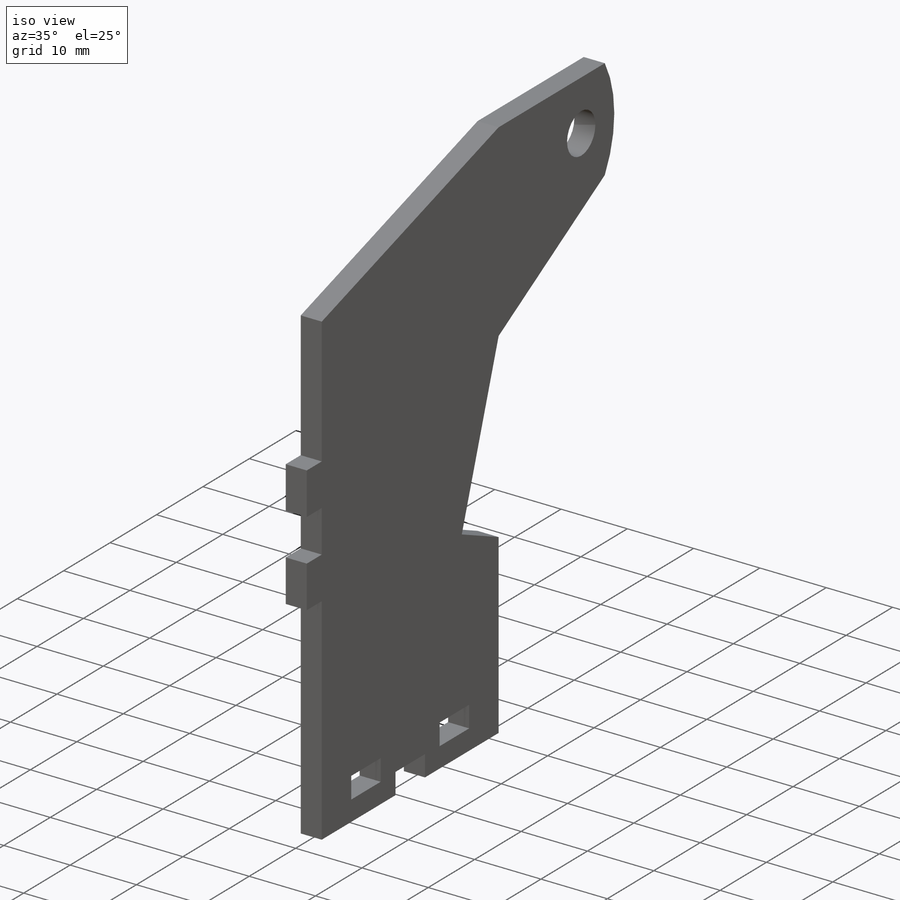
[diagram: iso view]
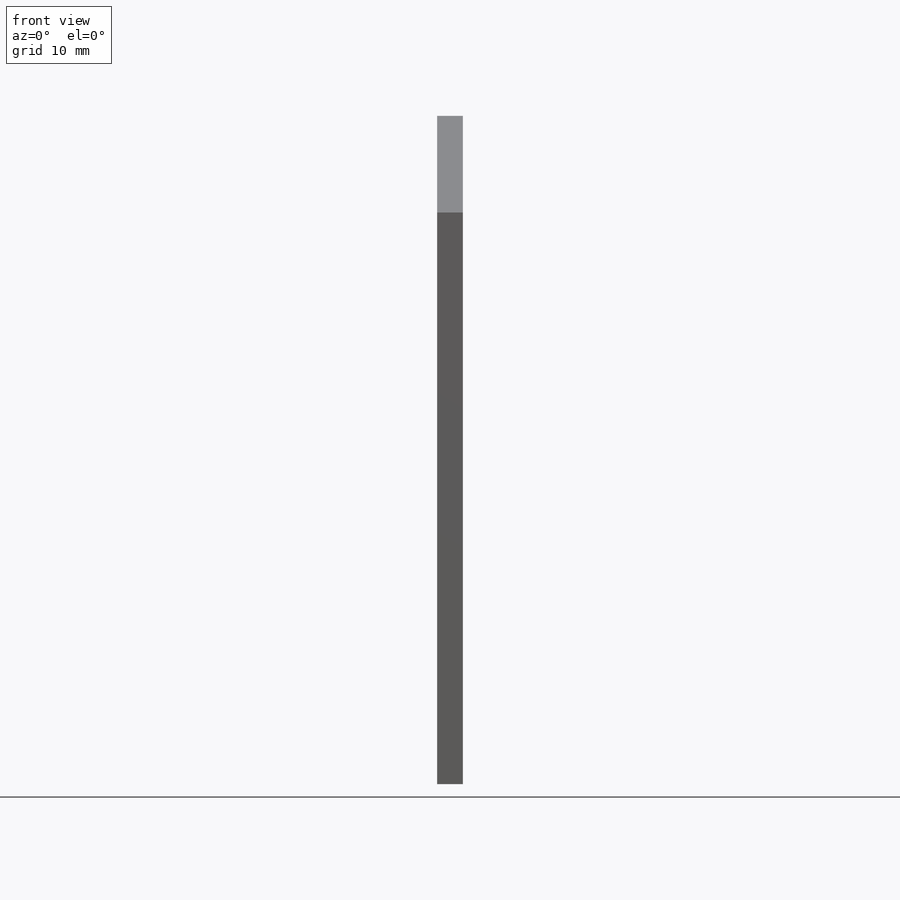
[diagram: front view]
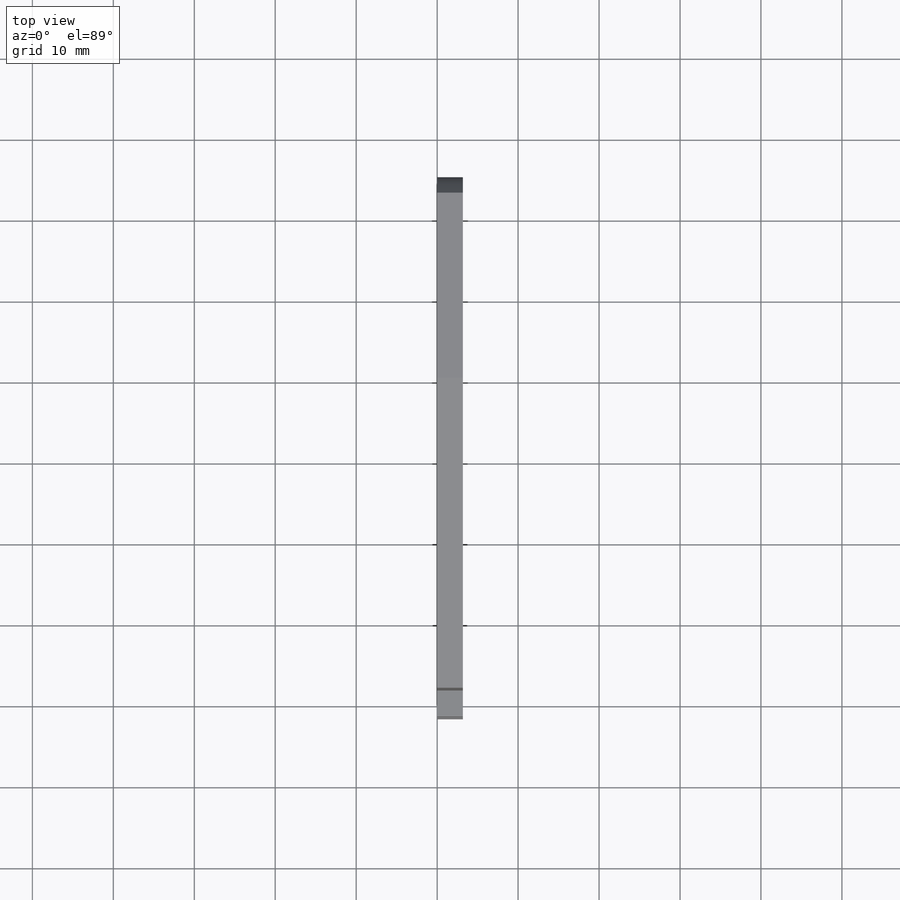
[diagram: top view]
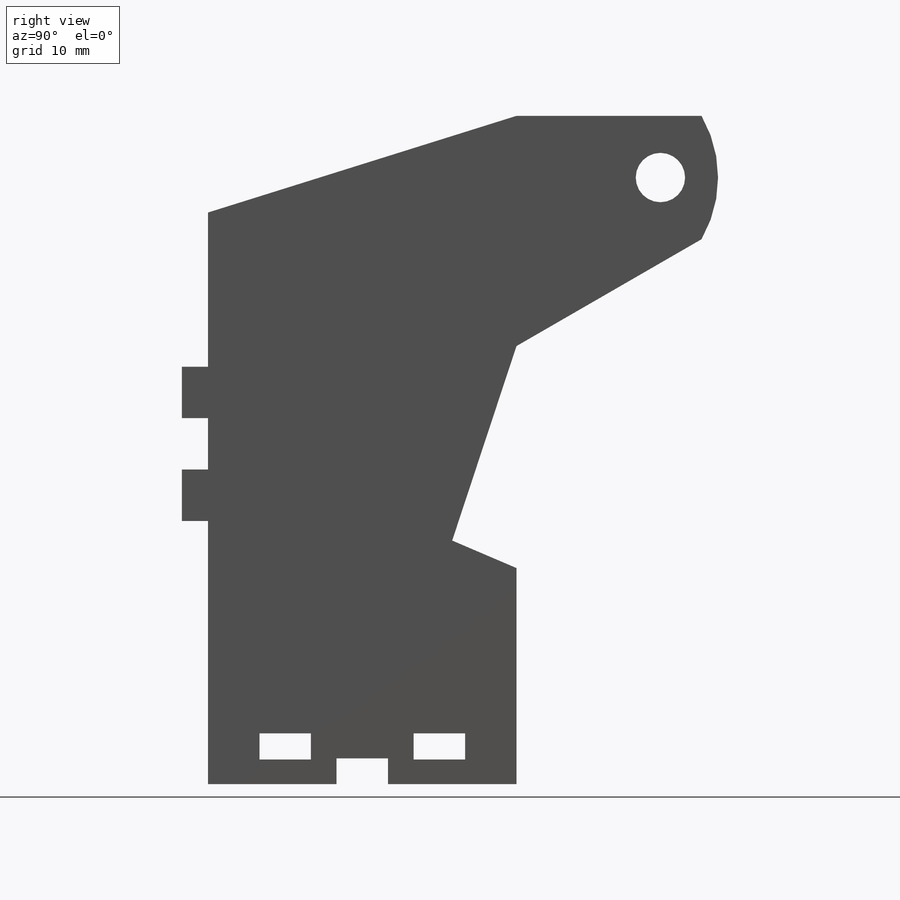
[diagram: right view]
SOLIDWORKS PART (.sldprt)
format: sldprt  version: not decoded by parser v0  size: 314,368 bytes
history: native  units: mm
features: sketch x6, cut_extrude x4, extrude x2, material x1 (+16 scaffold rows collapsed)
feature tree (29):
  scaffold x16  (default folders/planes/origin — collapsed)
  material  "Material <not specified>"
  sketch  "Sketch1"  dims[c1.D4=15.24mm c1.D5=12.7mm c1.D3=12.7mm c1.D6=15.24mm c1.D1=38.1mm c1.D2=82.55mm c2.D3=31.75mm c2.D4=27.94mm c2.D5=25.4mm c3.D5=100.0deg c3.D3=30.48mm c3.D4=~42.811113mm c4.D4=110.0deg c4.D6=~39.206543mm c4.D3=31.75mm c5.D4=15.24mm c5.D5=~36.472626mm c6.D5=120.0deg c6.D1=38.1mm c6.D3=38.1mm c6.D7=22.86mm]
  extrude  "Boss-Extrude1"  Depth=3.175mm
  sketch  "Sketch3"  dims[c1.D1=~7.04589mm c1.D3=6.096mm c2.D1=12.7mm c2.D2=55.88mm c3.D1=7.62mm]
  cut_extrude  "cut for axle"  [1 undecoded]
  sketch  "Sketch4"  dims[c1.D1=10.16mm c1.D2=4.7625mm c2.D1=6.35mm c2.D3=6.35mm c2.D4=6.35mm c2.D5=3.2258mm c2.D6=3.2258mm c2.D2=3.048mm c2.D7=6.35mm c2.D8=3.175mm]
  cut_extrude  "cut for tabs"  [1 undecoded]
  sketch  "Sketch6"  dims[D1=~51.034622mm D2=~11.325179mm]
  cut_extrude  "cut for clearance"  [1 undecoded]
  sketch  "Sketch9"  dims[D1=11.938mm D2=38.1mm]
  cut_extrude  "Cut-Extrude1"  [1 undecoded]
  sketch  "Sketch10"  dims[D1=3.2258mm D2=3.2258mm D3=6.35mm D4=6.35mm D5=6.35mm D6=19.05mm]
  extrude  "tabs for back plate"  Depth=3.175mm
decode coverage: 8 of 12 modeling features carry decoded parameters
note: ~ marks probable driven/reference dimensions
note: 4 parameter values undecoded
summary: no parameter record found for 4 features
note: suppression state not decoded; provenance and decode notes live in map.json
